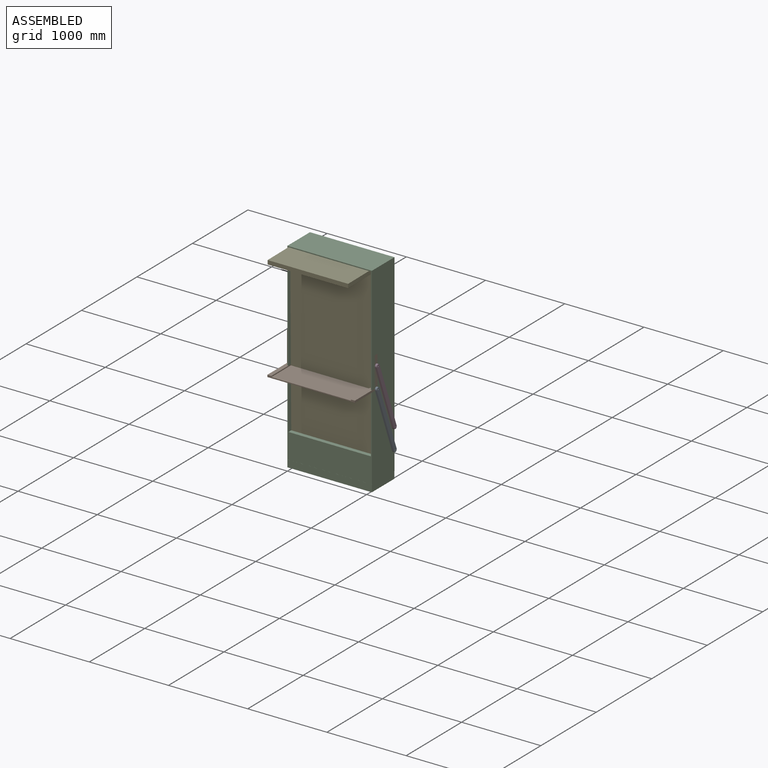
[diagram: assembled view]
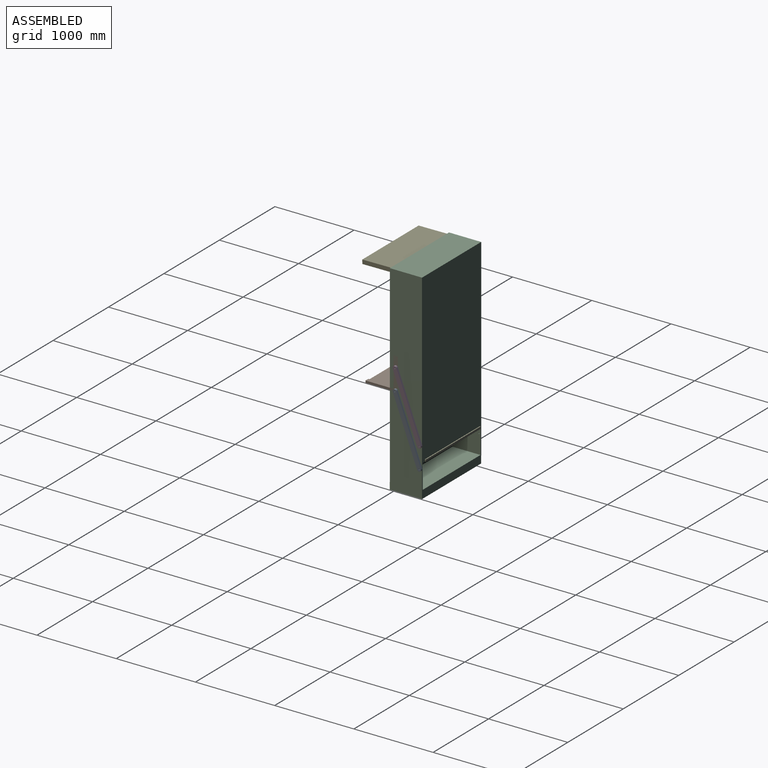
[diagram: assembled view, second angle]
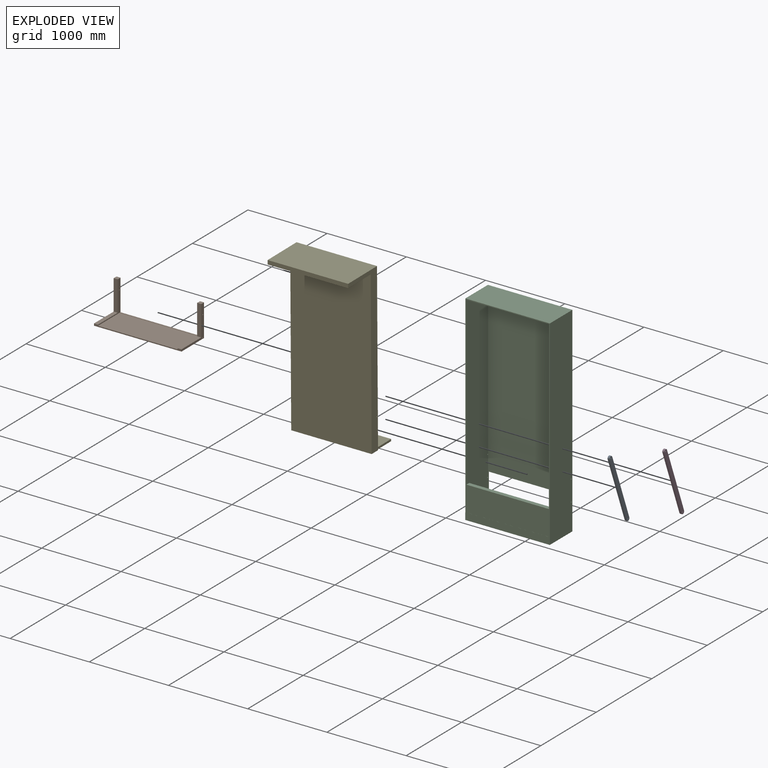
[diagram: exploded view]
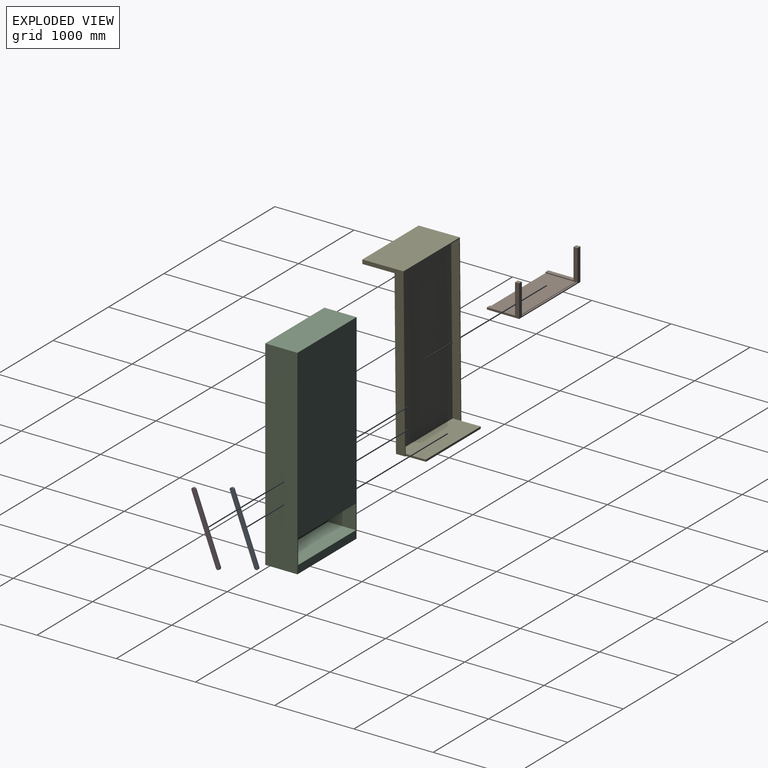
[diagram: exploded view, second angle]
ASSEMBLY  parts=5 mates=5
PART A: 8 faces, bbox 25.4x459.3x811.7 mm
  f0: plane 760.87x408.52mm, normal (0,-0.88,0.47), area 21935.4mm2, adj f1,f5,f6,f7
  f1: cylinder r=25.4mm len=47.78mm, axis (-1,0,0), area 2026.8mm2, adj f0,f2,f6,f7
  f2: plane 760.87x408.52mm, normal (0,0.88,-0.47), area 21935.4mm2, adj f1,f5,f6,f7
  f3: cylinder r=6.35mm len=25.4mm, axis (-1,0,0), area 1013.4mm2, adj f6,f7
  f4: cylinder r=6.35mm len=25.4mm, axis (-1,0,0), area 1013.4mm2, adj f6,f7
  f5: cylinder r=25.4mm len=47.78mm, axis (-1,0,0), area 2026.8mm2, adj f0,f2,f6,f7
  f6: plane 811.67x459.32mm, normal (1,0,0), area 45644.4mm2, adj f0,f1,f2,f3,f4,f5
  f7: plane 811.67x459.32mm, normal (-1,0,0), area 45644.4mm2, adj f0,f1,f2,f3,f4,f5
PART B: 18 faces, bbox 1104.9x406.4x406.4 mm
  f0: plane 406.4x393.7mm, normal (-1,0,0), area 24326.1mm2, adj f1,f6,f7,f8,f9,f12,f15,f16
  f1: plane 1003.3x14.47mm, normal (0,0,1), area 14517.2mm2, adj f0,f3,f8,f12
  f2: plane 406.4x406.4mm, normal (-1,0,0), area 29424mm2, adj f4,f8,f9,f10,f11,f12,f13,f14
  f3: plane 406.4x393.7mm, normal (1,0,0), area 24326.1mm2, adj f1,f7,f8,f9,f10,f11,f12,f13
  f4: plane 1104.9x406.4mm, normal (0,0,-1), area 449031.4mm2, adj f2,f5,f8,f9
  f5: plane 406.4x406.4mm, normal (1,0,0), area 29424mm2, adj f4,f6,f8,f9,f12,f15,f16,f17
  f6: plane 50.8x50.8mm, normal (0,0,1), area 2580.6mm2, adj f0,f5,f8,f16
  f7: plane 1003.3x379.23mm, normal (0,0,1), area 380482.1mm2, adj f0,f3,f9,f12
  f8: plane 1104.9x406.4mm, normal (0,-1,0), area 54032.1mm2, adj f0,f1,f2,f3,f4,f5,f6,f10
  f9: plane 1104.9x25.4mm, normal (0,1,0), area 15322.5mm2, adj f0,f2,f3,f4,f5,f7,f13,f17
  f10: plane 50.8x50.8mm, normal (0,0,1), area 2580.6mm2, adj f2,f3,f8,f14
  f11: cylinder r=6.35mm len=50.8mm, axis (1,0,0), area 2026.8mm2, adj f2,f3
  f12: cylinder r=6.35mm len=1104.9mm, axis (1,0,0), area 24068.6mm2, adj f0,f1,f2,f3,f5,f7
  f13: plane 355.6x50.8mm, normal (0,0,1), area 18064.5mm2, adj f2,f3,f9,f14
  f14: plane 381x50.8mm, normal (0,1,0), area 19354.8mm2, adj f2,f3,f10,f13
  f15: cylinder r=6.35mm len=50.8mm, axis (1,0,0), area 2026.8mm2, adj f0,f5
  f16: plane 381x50.8mm, normal (0,1,0), area 19354.8mm2, adj f0,f5,f6,f17
  f17: plane 355.6x50.8mm, normal (0,0,1), area 18064.5mm2, adj f0,f5,f9,f16
PART C: 22 faces, bbox 1066.8x406.9x2527.3 mm
  f0: plane 1066.8x0.5mm, normal (0,0,-1), area 532.8mm2, adj f6,f9,f10,f20
  f1: plane 2413x406.4mm, normal (-1,0,0), area 938131.9mm2, adj f3,f4,f5,f6,f7,f11,f12,f13
  f2: plane 2413x406.4mm, normal (1,0,0), area 938131.9mm2, adj f3,f4,f5,f6,f7,f11,f12,f13
  f3: plane 1041.4x355.6mm, normal (0,0,1), area 370321.8mm2, adj f1,f2,f6,f12
  f4: plane 1041.4x12.7mm, normal (0,0,-1), area 13225.8mm2, adj f1,f2,f5,f6
  f5: plane 2108.2x1041.4mm, normal (0,-1,0), area 2195479.5mm2, adj f1,f2,f4,f7
  f6: plane 2438.4x1066.8mm, normal (0,1,0), area 2283866.4mm2, adj f0,f1,f2,f3,f4,f8,f9,f10
  f7: plane 1041.4x393.7mm, normal (0,0,-1), area 409999.2mm2, adj f1,f2,f5,f11
  f8: plane 1066.8x406.4mm, normal (0,0,1), area 433547.5mm2, adj f6,f9,f10,f11
  f9: plane 2527.3x406.9mm, normal (-1,0,0), area 1026841.4mm2, adj f0,f6,f8,f11,f16,f17,f18,f19
  f10: plane 2527.3x406.9mm, normal (1,0,0), area 1026841.4mm2, adj f0,f6,f8,f11,f14,f15,f18,f19
  f11: plane 2438.4x1066.8mm, normal (0,-1,0), area 405805.6mm2, adj f1,f2,f7,f8,f9,f10,f13,f18
  f12: plane 1041.4x304.8mm, normal (0,1,0), area 317418.7mm2, adj f1,f2,f3,f13
  f13: plane 1041.4x50.8mm, normal (0,0,1), area 52903.1mm2, adj f1,f2,f11,f12
  f14: cylinder r=6.35mm len=12.7mm, axis (-1,0,0), area 506.7mm2, adj f1,f10
  f15: cylinder r=6.35mm len=12.7mm, axis (-1,0,0), area 506.7mm2, adj f1,f10
  f16: cylinder r=6.35mm len=12.7mm, axis (-1,0,0), area 506.7mm2, adj f2,f9
  f17: cylinder r=6.35mm len=12.7mm, axis (-1,0,0), area 506.7mm2, adj f2,f9
  f18: plane 1066.8x0.5mm, normal (0,0,1), area 532.8mm2, adj f9,f10,f11,f19
  f19: plane 1066.8x88.9mm, normal (0,-1,0), area 94838.5mm2, adj f9,f10,f18,f21
  f20: plane 1066.8x88.9mm, normal (0,1,0), area 94838.5mm2, adj f0,f9,f10,f21
  f21: plane 1066.8x406.4mm, normal (0,0,-1), area 433547.5mm2, adj f9,f10,f19,f20
PART D: same geometry as A
PART E: 18 faces, bbox 1016x774.7x2108.2 mm
  f0: plane 2070.1x101.6mm, normal (-1,0,0), area 210195.5mm2, adj f6,f7,f9,f12,f15
  f1: plane 1016x368.3mm, normal (0,0,-1), area 367741.2mm2, adj f2,f4,f5,f9,f10,f11,f13
  f2: plane 2108.2x520.7mm, normal (1,0,0), area 261485.7mm2, adj f1,f3,f5,f9,f15,f16,f17
  f3: plane 1016x520.7mm, normal (0,0,1), area 529031.2mm2, adj f2,f4,f9,f17
  f4: plane 2108.2x520.7mm, normal (-1,0,0), area 261485.7mm2, adj f1,f3,f5,f9,f14,f16,f17
  f5: plane 2057.4x1016mm, normal (0,-1,0), area 2090318.4mm2, adj f1,f2,f4,f16
  f6: plane 2070.1x990.6mm, normal (0,1,0), area 2050641.1mm2, adj f0,f7,f8,f12
  f7: plane 990.6x101.6mm, normal (0,0,-1), area 100645mm2, adj f0,f6,f8,f9
  f8: plane 2070.1x101.6mm, normal (1,0,0), area 210195.5mm2, adj f6,f7,f9,f12,f14
  f9: plane 2108.2x1016mm, normal (0,1,0), area 66128.9mm2, adj f0,f1,f2,f3,f4,f7,f8,f10
  f10: plane 254x25.4mm, normal (-1,0,0), area 6451.6mm2, adj f1,f9,f12,f13
  f11: plane 254x25.4mm, normal (1,0,0), area 6451.6mm2, adj f1,f9,f12,f13
  f12: plane 990.6x355.6mm, normal (0,0,1), area 352257.4mm2, adj f0,f6,f8,f10,f11,f13
  f13: plane 990.6x25.4mm, normal (0,1,0), area 25161.2mm2, adj f1,f10,f11,f12
  f14: cylinder r=6.35mm len=12.7mm, axis (-1,0,0), area 506.7mm2, adj f4,f8
  f15: cylinder r=6.35mm len=12.7mm, axis (-1,0,0), area 506.7mm2, adj f0,f2
  f16: plane 1016x406.4mm, normal (0,0,-1), area 412902.4mm2, adj f2,f4,f5,f17
  f17: plane 1016x50.8mm, normal (0,-1,0), area 51612.8mm2, adj f2,f3,f4,f16
PLACE A rot(axis=(-1,0,0),130.9deg) t=(794.95,-2510.04,-2684.68)mm
PLACE B rot(axis=(0,0,-1),180deg) t=(246.45,-307.44,1138.56)mm
PLACE C t=(0,406.4,0)mm
PLACE D rot(axis=(-1,0,0),130.9deg) t=(794.95,-2510.04,-2421.16)mm
PLACE E rot(axis=(1,0,0),0.5deg) t=(248.02,54.73,1306.26)mm
MATE revolute C.f14 <-> A.f3  axis (1,0,0) through (1066.8,385.58,254)mm
MATE revolute D.f3 <-> C.f15  axis (-1,0,0) through (1066.8,385.58,517.52)mm
MATE revolute A.f1 <-> B.f12  axis (-1,0,0) through (1066.8,78.14,1061.02)mm
MATE revolute E.f4 <-> C.f2  axis (-1,0,0) through (12.7,50.8,317.5)mm
MATE revolute B.f11 <-> D.f1  axis (1,0,0) through (1066.8,78.14,1324.55)mm
